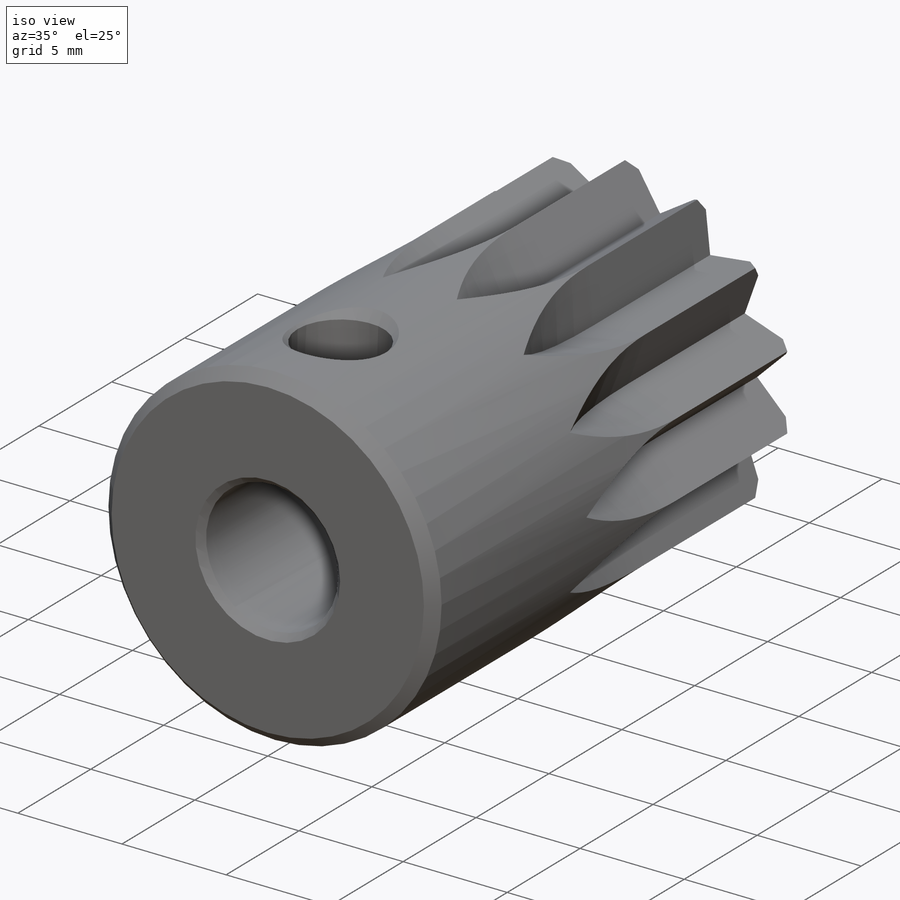
[diagram: iso view]
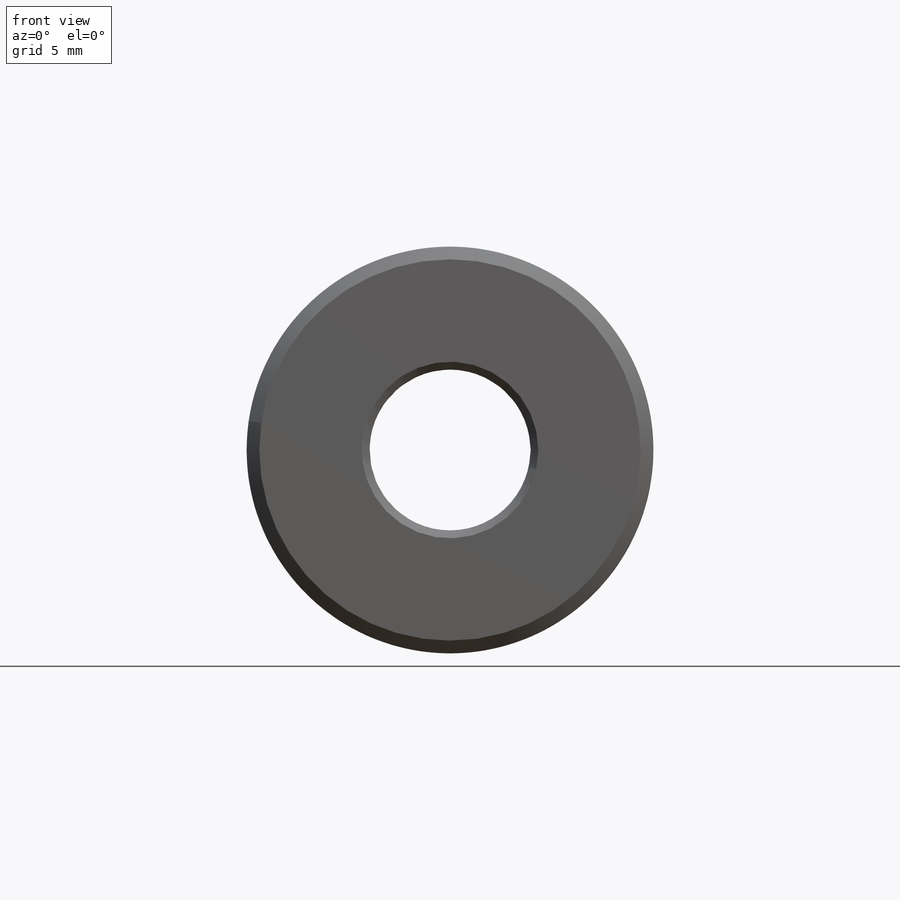
[diagram: front view]
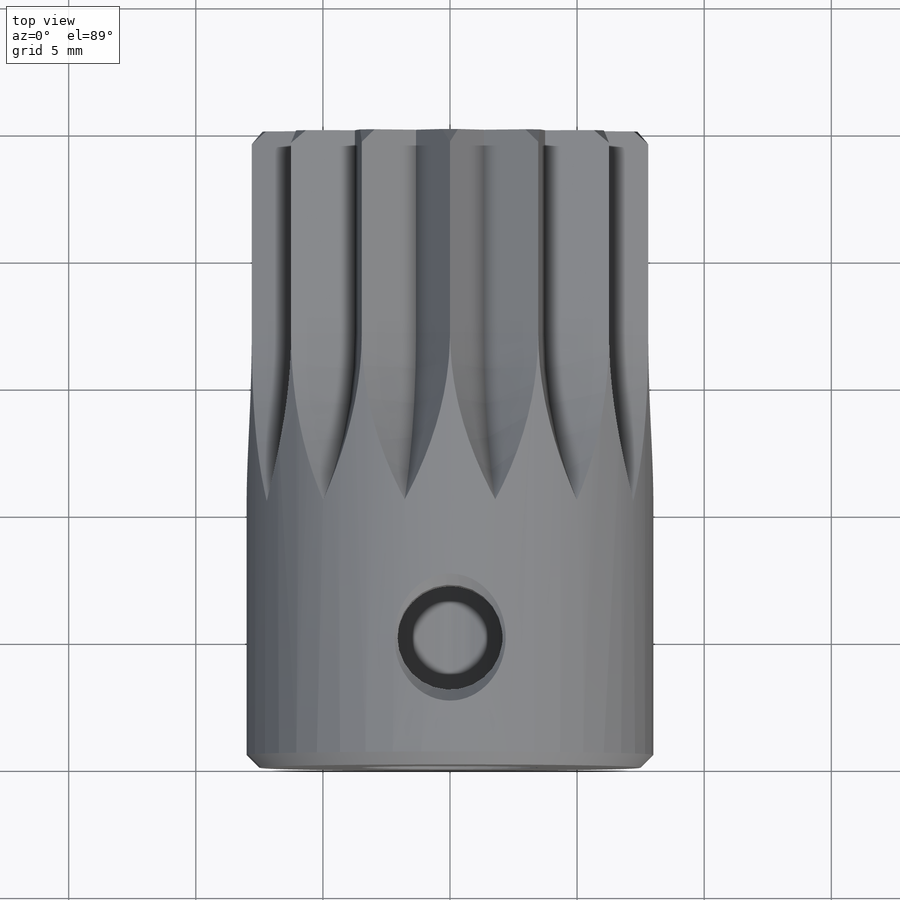
[diagram: top view]
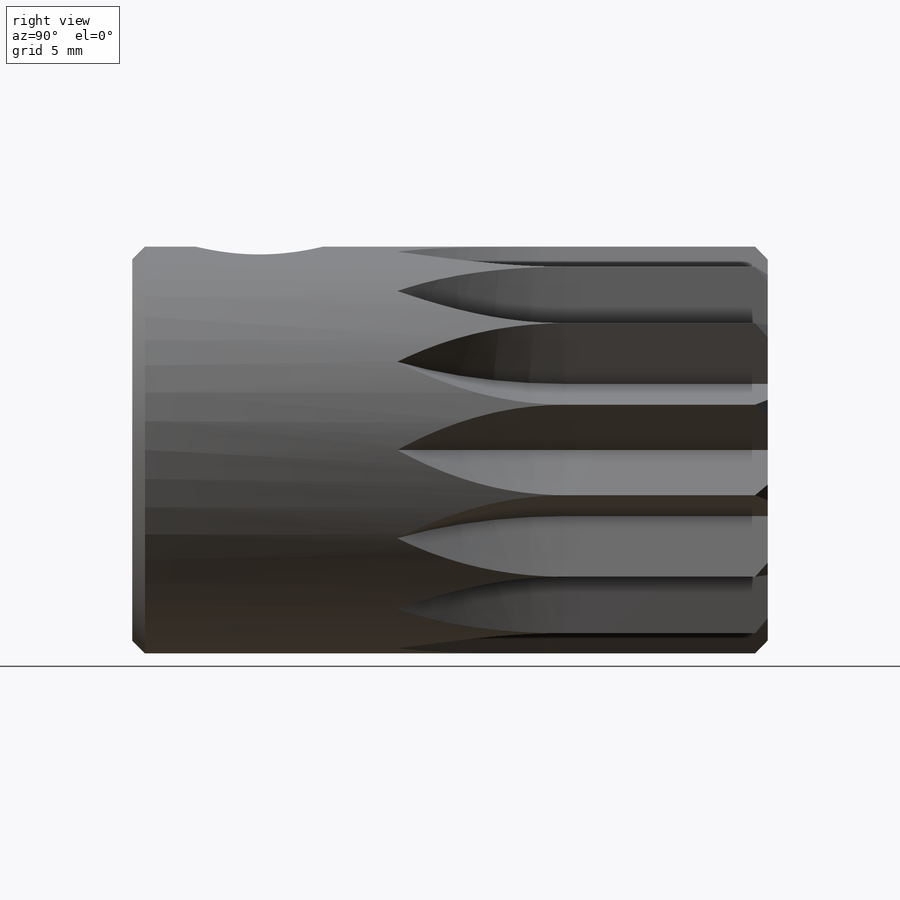
[diagram: right view]
SOLIDWORKS PART (.sldprt)
format: sldprt  version: not decoded by parser v0  size: 366,592 bytes
history: native  units: mm
features: plane x17, sketch x17, cut_revolve x15, material x1, revolve x1, cut_extrude x1 (+16 scaffold rows collapsed)
feature tree (68):
  scaffold x16  (default folders/planes/origin — collapsed)
  material  "Material <not specified>"
  plane  "Plane1"
  sketch  "Sketch1"
  revolve  "Revolve1"  Angle=360deg
  plane  "Plane2"
  sketch  "Sketch2"
  cut_extrude  "Cut-Extrude1"  Depth=8mm
  plane  "Plane3"
  sketch  "Sketch3"
  cut_revolve  "Cut-Revolve1"  Angle=360deg
  plane  "Plane4"
  sketch  "Sketch4"
  cut_revolve  "Cut-Revolve2"  Angle=360deg
  plane  "Plane5"
  sketch  "Sketch5"
  cut_revolve  "Cut-Revolve3"  Angle=360deg
  plane  "Plane6"
  sketch  "Sketch6"
  cut_revolve  "Cut-Revolve4"  Angle=360deg
  plane  "Plane7"
  sketch  "Sketch7"
  cut_revolve  "Cut-Revolve5"  Angle=360deg
  plane  "Plane8"
  sketch  "Sketch8"
  cut_revolve  "Cut-Revolve6"  Angle=360deg
  plane  "Plane9"
  sketch  "Sketch9"
  cut_revolve  "Cut-Revolve7"  Angle=360deg
  plane  "Plane10"
  sketch  "Sketch10"
  cut_revolve  "Cut-Revolve8"  Angle=360deg
  plane  "Plane11"
  sketch  "Sketch11"
  cut_revolve  "Cut-Revolve9"  Angle=360deg
  plane  "Plane12"
  sketch  "Sketch12"
  cut_revolve  "Cut-Revolve10"  Angle=360deg
  plane  "Plane13"
  sketch  "Sketch13"
  cut_revolve  "Cut-Revolve11"  Angle=360deg
  plane  "Plane14"
  sketch  "Sketch14"
  cut_revolve  "Cut-Revolve12"  Angle=360deg
  plane  "Plane15"
  sketch  "Sketch15"
  cut_revolve  "Cut-Revolve13"  Angle=360deg
  plane  "Plane16"
  sketch  "Sketch16"
  cut_revolve  "Cut-Revolve14"  Angle=360deg
  plane  "Plane17"
  sketch  "Sketch17"
  cut_revolve  "Cut-Revolve15"  Angle=360deg
decode coverage: 17 of 34 modeling features carry decoded parameters
note: suppression state not decoded; provenance and decode notes live in map.json
